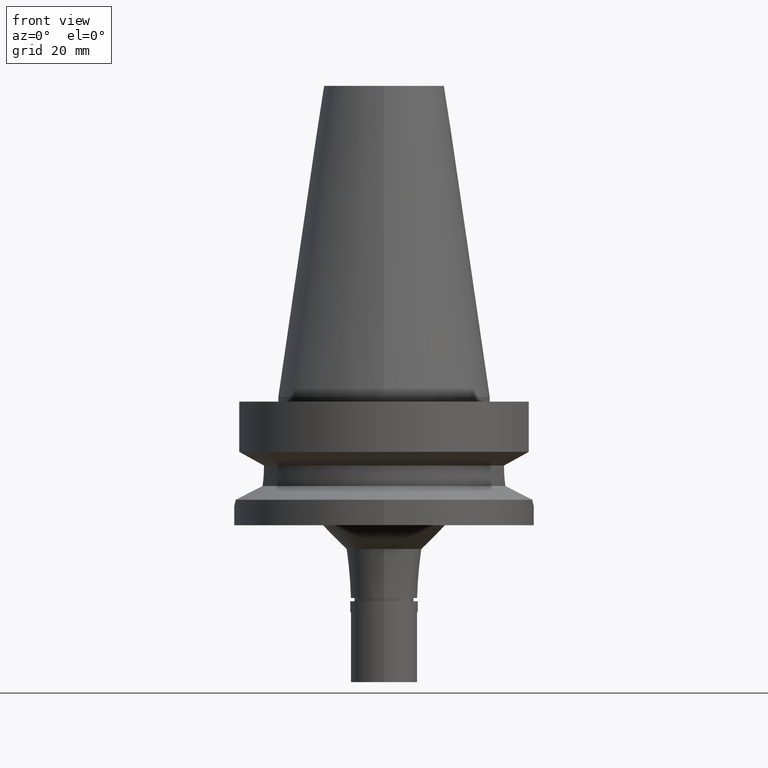
[diagram: clean part render]
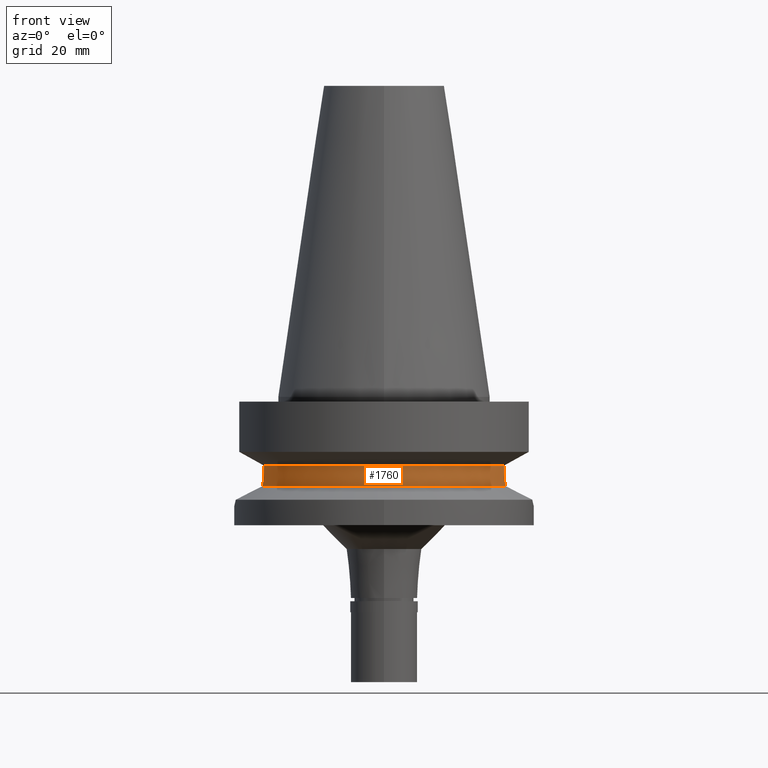
[diagram: same view with one face highlighted and labeled with its STEP entity id]
A machine part, front view. The second image highlights one B-rep face of the part: STEP entity #1760.
In plain terms, the highlighted cylindrical surface (partial cylindrical patch) has radius 26.5 mm, axis along (0, 0, -1).
Its self-contained STEP definition (entity closure, byte-faithful):
#34 = CIRCLE ( 'NONE', #2821, 26.49999999999998224 ) ;
#80 = CARTESIAN_POINT ( 'NONE',  ( -25.24772266958000344, -8.050000000000000711, -14.94999999999999929 ) ) ;
#90 = DIRECTION ( 'NONE',  ( 0.0000000000000000000, 0.0000000000000000000, -1.000000000000000000 ) ) ;
#190 = CARTESIAN_POINT ( 'NONE',  ( -25.32840181445836336, -7.792653841590518660, -16.96926092298874877 ) ) ;
#257 = VERTEX_POINT ( 'NONE', #981 ) ;
#301 = CARTESIAN_POINT ( 'NONE',  ( 25.43787059307001641, -7.435562863904584319, -18.11659111971998115 ) ) ;
#309 = EDGE_CURVE ( 'NONE', #1565, #2823, #2218, .T. ) ;
#310 = DIRECTION ( 'NONE',  ( 0.0000000000000000000, -1.000000000000000000, 0.0000000000000000000 ) ) ;
#334 = CARTESIAN_POINT ( 'NONE',  ( 25.31952011347645737, -7.821476031042577048, -16.85458648997031617 ) ) ;
#354 = DIRECTION ( 'NONE',  ( -2.965689657697128341E-06, 9.301485452181394611E-06, 0.9999999999523434546 ) ) ;
#357 = CARTESIAN_POINT ( 'NONE',  ( -25.53175183775000079, -7.097862220092999941, -18.74774300138999905 ) ) ;
#393 = CARTESIAN_POINT ( 'NONE',  ( -25.24772266958000344, -8.050000000000000711, -14.94999999999999929 ) ) ;
#409 = ORIENTED_EDGE ( 'NONE', *, *, #1287, .F. ) ;
#461 = VECTOR ( 'NONE', #2959, 1000.000000000000227 ) ;
#497 = DIRECTION ( 'NONE',  ( 0.0000000000000000000, 0.0000000000000000000, -1.000000000000000000 ) ) ;
#526 = VERTEX_POINT ( 'NONE', #2236 ) ;
#560 = FACE_OUTER_BOUND ( 'NONE', #1910, .T. ) ;
#570 = CARTESIAN_POINT ( 'NONE',  ( 25.28048863378946010, -7.947021833655625755, -16.24412758137958335 ) ) ;
#649 = CARTESIAN_POINT ( 'NONE',  ( -25.32546100062923244, -7.802196480338689177, -16.93206928540737621 ) ) ;
#766 = ORIENTED_EDGE ( 'NONE', *, *, #1454, .T. ) ;
#924 = CARTESIAN_POINT ( 'NONE',  ( 0.0000000000000000000, 0.0000000000000000000, -18.74774300138999905 ) ) ;
#974 = DIRECTION ( 'NONE',  ( 0.9527442516822307583, -0.3037735849057093818, 0.0000000000000000000 ) ) ;
#981 = CARTESIAN_POINT ( 'NONE',  ( -25.53175183775000079, -7.097862220092999941, -18.74774300138999905 ) ) ;
#1012 = CARTESIAN_POINT ( 'NONE',  ( 25.25396380561988607, -8.030903546329694720, -15.59366754601816574 ) ) ;
#1035 = CARTESIAN_POINT ( 'NONE',  ( -25.34383784690667696, -7.742464100974354224, -17.15621186859764791 ) ) ;
#1063 = CYLINDRICAL_SURFACE ( 'NONE', #2306, 26.50000000000000000 ) ;
#1186 = CARTESIAN_POINT ( 'NONE',  ( 25.30213757442784583, -7.877637162976262708, -16.61056528398788146 ) ) ;
#1213 = CARTESIAN_POINT ( 'NONE',  ( 25.53175183775000079, -7.097862220092999941, -18.74774300138999905 ) ) ;
#1263 = CARTESIAN_POINT ( 'NONE',  ( -25.37568864340162733, -7.637841086874976426, -17.49779646604959638 ) ) ;
#1287 = EDGE_CURVE ( 'NONE', #2400, #526, #2427, .T. ) ;
#1418 = ORIENTED_EDGE ( 'NONE', *, *, #309, .F. ) ;
#1432 = CARTESIAN_POINT ( 'NONE',  ( 25.24772266958000344, -8.050000000000000711, -14.94999999999999929 ) ) ;
#1454 = EDGE_CURVE ( 'NONE', #257, #2421, #34, .T. ) ;
#1480 = CARTESIAN_POINT ( 'NONE',  ( 25.31649706320713733, -7.831262302060541636, -16.81393877535621328 ) ) ;
#1558 = DIRECTION ( 'NONE',  ( -0.9634623335000935818, -0.2678438573619981722, 0.0000000000000000000 ) ) ;
#1561 = CARTESIAN_POINT ( 'NONE',  ( -25.32415077929965719, -7.806445795312396463, -16.91528421260447601 ) ) ;
#1565 = VERTEX_POINT ( 'NONE', #2139 ) ;
#1573 = DIRECTION ( 'NONE',  ( 0.0000000000000000000, 0.0000000000000000000, 1.000000000000000000 ) ) ;
#1581 = VECTOR ( 'NONE', #354, 1000.000000000000114 ) ;
#1599 = ORIENTED_EDGE ( 'NONE', *, *, #1992, .F. ) ;
#1601 = B_SPLINE_CURVE_WITH_KNOTS ( 'NONE', 3,
 ( #1432, #1909, #1012, #2116, #570, #1937, #1186, #1669, #1480, #334, #2175, #1924, #301, #1213 ),
 .UNSPECIFIED., .F., .F.,
 ( 4, 2, 2, 1, 1, 2, 2, 4 ),
 ( 0.0000000000000000000, 0.2500000000000033862, 0.3750000000000043299, 0.4375000000000048295, 0.4687500000000036637, 0.4843750000000031641, 0.5000000000000026645, 1.000000000000000000 ),
 .UNSPECIFIED. ) ;
#1655 = EDGE_CURVE ( 'NONE', #1565, #526, #2059, .T. ) ;
#1669 = CARTESIAN_POINT ( 'NONE',  ( 25.31203562611612057, -7.845693926034295274, -16.75295273484678660 ) ) ;
#1756 = CARTESIAN_POINT ( 'NONE',  ( -25.48480250143031967, -7.266743887089764264, -18.43210847756382620 ) ) ;
#1760 = ADVANCED_FACE ( 'NONE', ( #560 ), #1063, .T. ) ;
#1798 = CARTESIAN_POINT ( 'NONE',  ( -25.44389776528783997, -7.408340107185043877, -18.11686868422951591 ) ) ;
#1873 = CARTESIAN_POINT ( 'NONE',  ( 0.0000000000000000000, 1.065333950388000029E-14, -14.45225699861000024 ) ) ;
#1909 = CARTESIAN_POINT ( 'NONE',  ( 25.24772266958000344, -8.050000000000000711, -15.26994624097755349 ) ) ;
#1910 = EDGE_LOOP ( 'NONE', ( #1599, #766, #2565, #1418, #2805, #409 ) ) ;
#1924 = CARTESIAN_POINT ( 'NONE',  ( 25.36815874783960467, -7.663791245765212423, -17.48814129335194067 ) ) ;
#1937 = CARTESIAN_POINT ( 'NONE',  ( 25.29453118987922267, -7.902064242066239252, -16.48842005630119445 ) ) ;
#1956 = B_SPLINE_CURVE_WITH_KNOTS ( 'NONE', 3,
 ( #357, #1756, #1798, #2669, #1263, #2881, #1035, #2709, #190, #649, #1561, #2482, #1964, #1980 ),
 .UNSPECIFIED., .F., .F.,
 ( 4, 2, 2, 1, 1, 2, 2, 4 ),
 ( 0.0000000000000000000, 0.2499999999999841238, 0.3749999999999763522, 0.4374999999999725775, 0.4687499999999721889, 0.4843749999999718558, 0.4999999999999715783, 1.000000000000000000 ),
 .UNSPECIFIED. ) ;
#1964 = CARTESIAN_POINT ( 'NONE',  ( -25.24772266957999989, -8.049999999999979394, -15.58990582805522784 ) ) ;
#1980 = CARTESIAN_POINT ( 'NONE',  ( -25.24772266958000344, -8.050000000000000711, -14.94999999999999929 ) ) ;
#1992 = EDGE_CURVE ( 'NONE', #257, #2400, #1956, .T. ) ;
#2059 = CIRCLE ( 'NONE', #2925, 26.50000000000000711 ) ;
#2116 = CARTESIAN_POINT ( 'NONE',  ( 25.27268721373958726, -7.971796898703089163, -16.08126439256691498 ) ) ;
#2139 = CARTESIAN_POINT ( 'NONE',  ( 25.24772266958000344, -8.050000000000000711, -14.45225699861000024 ) ) ;
#2175 = CARTESIAN_POINT ( 'NONE',  ( 25.32119310062810058, -7.816055872880485644, -16.87669021872437369 ) ) ;
#2218 = LINE ( 'NONE', #2714, #461 ) ;
#2236 = CARTESIAN_POINT ( 'NONE',  ( -25.24772414562999856, -8.049995370579999587, -14.45229237344999973 ) ) ;
#2306 = AXIS2_PLACEMENT_3D ( 'NONE', #2615, #90, #310 ) ;
#2361 = EDGE_CURVE ( 'NONE', #2823, #2421, #1601, .T. ) ;
#2366 = CARTESIAN_POINT ( 'NONE',  ( 25.53175183775000079, -7.097862220092999941, -18.74774300138999905 ) ) ;
#2400 = VERTEX_POINT ( 'NONE', #80 ) ;
#2421 = VERTEX_POINT ( 'NONE', #2366 ) ;
#2427 = LINE ( 'NONE', #393, #1581 ) ;
#2482 = CARTESIAN_POINT ( 'NONE',  ( -25.27267878703948156, -7.973310748594792940, -16.24511349491563195 ) ) ;
#2565 = ORIENTED_EDGE ( 'NONE', *, *, #2361, .F. ) ;
#2615 = CARTESIAN_POINT ( 'NONE',  ( 0.0000000000000000000, 2.099901866497999886E-14, 71.46999999999999886 ) ) ;
#2669 = CARTESIAN_POINT ( 'NONE',  ( -25.39160756133994923, -7.584934398586919535, -17.65162641215484385 ) ) ;
#2709 = CARTESIAN_POINT ( 'NONE',  ( -25.33288387036036582, -7.778102131033523214, -17.02514599129639095 ) ) ;
#2714 = CARTESIAN_POINT ( 'NONE',  ( 25.24772217470000157, -8.050001552137000971, -14.45224513890999951 ) ) ;
#2805 = ORIENTED_EDGE ( 'NONE', *, *, #1655, .T. ) ;
#2821 = AXIS2_PLACEMENT_3D ( 'NONE', #924, #1573, #1558 ) ;
#2823 = VERTEX_POINT ( 'NONE', #2854 ) ;
#2854 = CARTESIAN_POINT ( 'NONE',  ( 25.24772266958000344, -8.050000000000000711, -14.94999999999999929 ) ) ;
#2881 = CARTESIAN_POINT ( 'NONE',  ( -25.35407699156058570, -7.708962562372580152, -17.26964265289514344 ) ) ;
#2925 = AXIS2_PLACEMENT_3D ( 'NONE', #1873, #497, #974 ) ;
#2959 = DIRECTION ( 'NONE',  ( 9.942327908935438298E-07, 3.118276885708134126E-06, -0.9999999999946438400 ) ) ;